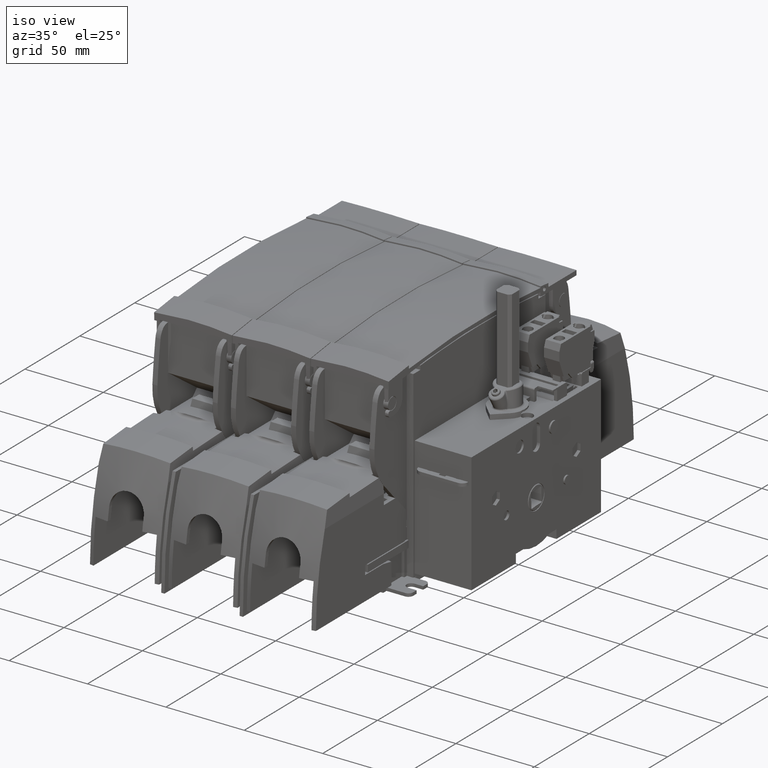
[diagram: clean part render]
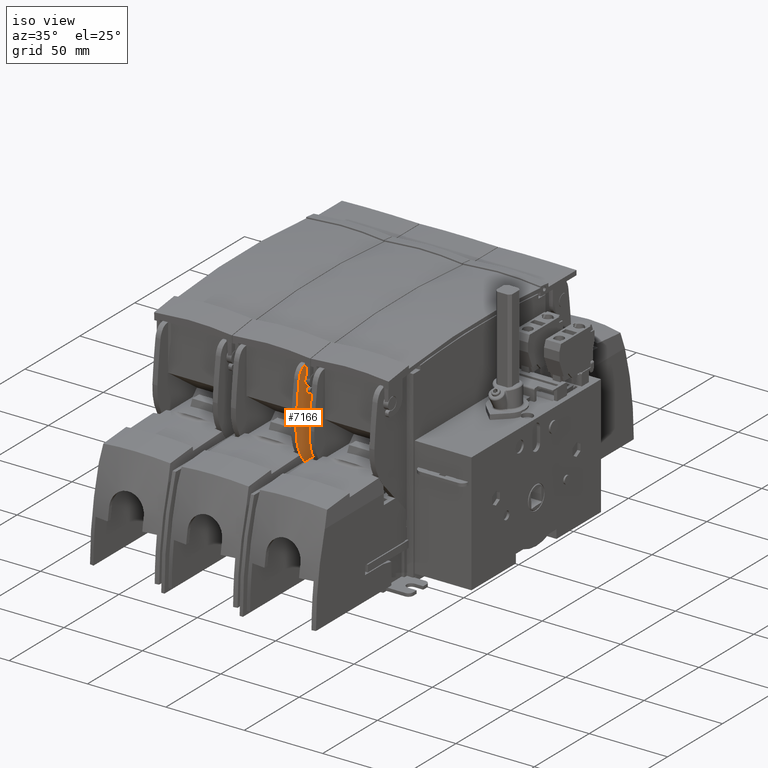
[diagram: same view with one face highlighted and labeled with its STEP entity id]
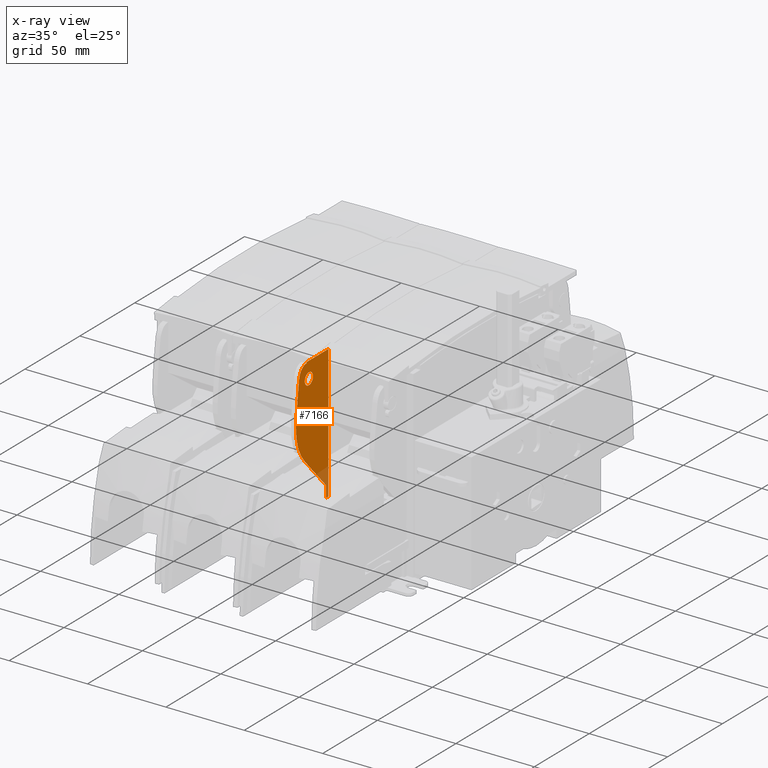
[diagram: x-ray of the same camera — body ghosted, the highlighted face saturated]
A machine part, iso view. The second image highlights one B-rep face of the part: STEP entity #7166.
The next image is the same camera in x-ray: the body ghosted, the highlighted face saturated — about 5% of this face is hidden behind the body in this view.
In plain terms, the highlighted planar face has unit normal (1, 0, 0).
Its self-contained STEP definition (entity closure, byte-faithful):
#1903=PLANE('',#49274);
#7166=ADVANCED_FACE('',(#9094,#9095),#1903,.T.);
#8591=CIRCLE('',#49269,6.);
#8592=CIRCLE('',#49270,10.);
#8593=CIRCLE('',#49271,357.6);
#8594=CIRCLE('',#49272,31.6);
#8595=CIRCLE('',#49273,3.75);
#9094=FACE_BOUND('',#11459,.T.);
#9095=FACE_BOUND('',#11460,.T.);
#11459=EDGE_LOOP('',(#23324,#23325,#23326,#23327,#23328,#23329,#23330,#23331,
#23332,#23333));
#11460=EDGE_LOOP('',(#23334));
#23324=ORIENTED_EDGE('',*,*,#35378,.T.);
#23325=ORIENTED_EDGE('',*,*,#35391,.F.);
#23326=ORIENTED_EDGE('',*,*,#35262,.T.);
#23327=ORIENTED_EDGE('',*,*,#35366,.F.);
#23328=ORIENTED_EDGE('',*,*,#35424,.F.);
#23329=ORIENTED_EDGE('',*,*,#35425,.F.);
#23330=ORIENTED_EDGE('',*,*,#35426,.T.);
#23331=ORIENTED_EDGE('',*,*,#35427,.T.);
#23332=ORIENTED_EDGE('',*,*,#35428,.T.);
#23333=ORIENTED_EDGE('',*,*,#35221,.T.);
#23334=ORIENTED_EDGE('',*,*,#35429,.T.);
#29003=VERTEX_POINT('',#76832);
#29004=VERTEX_POINT('',#76834);
#29031=VERTEX_POINT('',#76910);
#29032=VERTEX_POINT('',#76912);
#29088=VERTEX_POINT('',#77164);
#29096=VERTEX_POINT('',#77188);
#29123=VERTEX_POINT('',#77276);
#29124=VERTEX_POINT('',#77278);
#29125=VERTEX_POINT('',#77280);
#29126=VERTEX_POINT('',#77282);
#29127=VERTEX_POINT('',#77285);
#35221=EDGE_CURVE('',#29004,#29003,#40616,.T.);
#35262=EDGE_CURVE('',#29032,#29031,#40645,.T.);
#35366=EDGE_CURVE('',#29088,#29031,#40732,.T.);
#35378=EDGE_CURVE('',#29003,#29096,#40742,.T.);
#35391=EDGE_CURVE('',#29032,#29096,#40746,.T.);
#35424=EDGE_CURVE('',#29123,#29088,#8591,.T.);
#35425=EDGE_CURVE('',#29124,#29123,#8592,.T.);
#35426=EDGE_CURVE('',#29124,#29125,#8593,.T.);
#35427=EDGE_CURVE('',#29125,#29126,#8594,.T.);
#35428=EDGE_CURVE('',#29126,#29004,#40772,.T.);
#35429=EDGE_CURVE('',#29127,#29127,#8595,.T.);
#40616=LINE('',#76833,#45689);
#40645=LINE('',#76911,#45718);
#40732=LINE('',#77165,#45805);
#40742=LINE('',#77189,#45815);
#40746=LINE('',#77214,#45819);
#40772=LINE('',#77283,#45845);
#45689=VECTOR('',#59383,1.);
#45718=VECTOR('',#59454,1.);
#45805=VECTOR('',#59695,1.);
#45815=VECTOR('',#59717,1.);
#45819=VECTOR('',#59743,1.);
#45845=VECTOR('',#59815,1.);
#49269=AXIS2_PLACEMENT_3D('',#77275,#59807,#59808);
#49270=AXIS2_PLACEMENT_3D('',#77277,#59809,#59810);
#49271=AXIS2_PLACEMENT_3D('',#77279,#59811,#59812);
#49272=AXIS2_PLACEMENT_3D('',#77281,#59813,#59814);
#49273=AXIS2_PLACEMENT_3D('',#77284,#59816,#59817);
#49274=AXIS2_PLACEMENT_3D('',#77286,#59818,#59819);
#59383=DIRECTION('',(0.,4.38915884250257E-014,-1.));
#59454=DIRECTION('',(0.,-1.,0.));
#59695=DIRECTION('',(0.,3.64306999737768E-015,1.));
#59717=DIRECTION('',(0.,1.,0.));
#59743=DIRECTION('',(0.,0.,-1.));
#59807=DIRECTION('',(-1.,0.,0.));
#59808=DIRECTION('',(0.,0.,1.));
#59809=DIRECTION('',(-1.,0.,0.));
#59810=DIRECTION('',(0.,0.,0.999999999999999));
#59811=DIRECTION('',(1.,0.,0.));
#59812=DIRECTION('',(0.,0.,1.));
#59813=DIRECTION('',(1.,0.,0.));
#59814=DIRECTION('',(0.,0.,1.));
#59815=DIRECTION('',(0.,0.676702477095237,-0.73625658400667));
#59816=DIRECTION('',(-1.,0.,0.));
#59817=DIRECTION('',(0.,0.,-1.));
#59818=DIRECTION('',(1.,0.,0.));
#59819=DIRECTION('',(0.,0.,-1.));
#76832=CARTESIAN_POINT('',(20.8,-62.5000000000018,-0.7));
#76833=CARTESIAN_POINT('',(20.8,-62.5,-36.));
#76834=CARTESIAN_POINT('',(20.8,-62.5000000000022,6.68474715275361));
#76910=CARTESIAN_POINT('',(20.8,-80.0191991091395,84.4123947148));
#76911=CARTESIAN_POINT('',(20.8,-82.9101523558233,84.4123947148));
#76912=CARTESIAN_POINT('',(20.8,-60.2,84.4123947148));
#77164=CARTESIAN_POINT('',(20.8,-80.0191991091395,83.7415441863821));
#77165=CARTESIAN_POINT('',(20.8,-80.0191991091397,33.6231805847343));
#77188=CARTESIAN_POINT('',(20.8,-60.2000000000018,-0.7));
#77189=CARTESIAN_POINT('',(20.8,-100.728546699506,-0.7));
#77214=CARTESIAN_POINT('',(20.8,-60.2,90.0087605285199));
#77275=CARTESIAN_POINT('',(20.8,-80.2536603271487,77.7461269417485));
#77276=CARTESIAN_POINT('',(20.8,-85.4694267680983,80.7118950435165));
#77277=CARTESIAN_POINT('',(20.8,-77.0426834766629,75.3276590252638));
#77278=CARTESIAN_POINT('',(20.8,-86.939733254555,76.7588842674688));
#77279=CARTESIAN_POINT('',(20.8,266.978766802869,25.5782696062183));
#77280=CARTESIAN_POINT('',(20.8,-89.7203958005235,50.9449287878848));
#77281=CARTESIAN_POINT('',(20.8,-58.2,48.7033559966637));
#77282=CARTESIAN_POINT('',(20.8,-81.4657080546108,27.3195577204541));
#77283=CARTESIAN_POINT('',(20.8,-62.5000000000022,6.68474715275361));
#77284=CARTESIAN_POINT('',(20.8,-78.,74.));
#77285=CARTESIAN_POINT('',(20.8,-78.,70.25));
#77286=CARTESIAN_POINT('',(20.8,-100.728546699506,90.0087605285199));